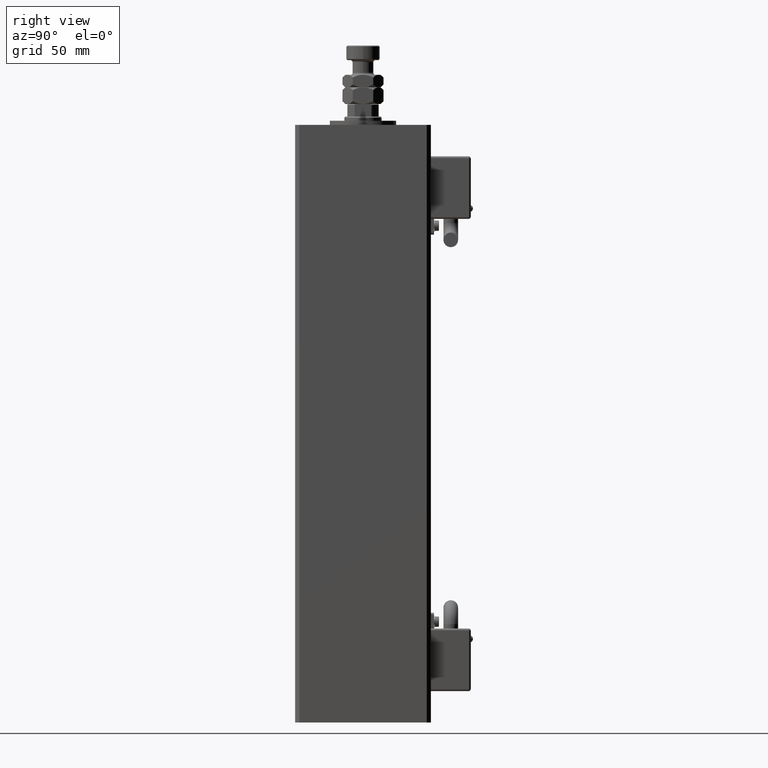
[diagram: clean part render]
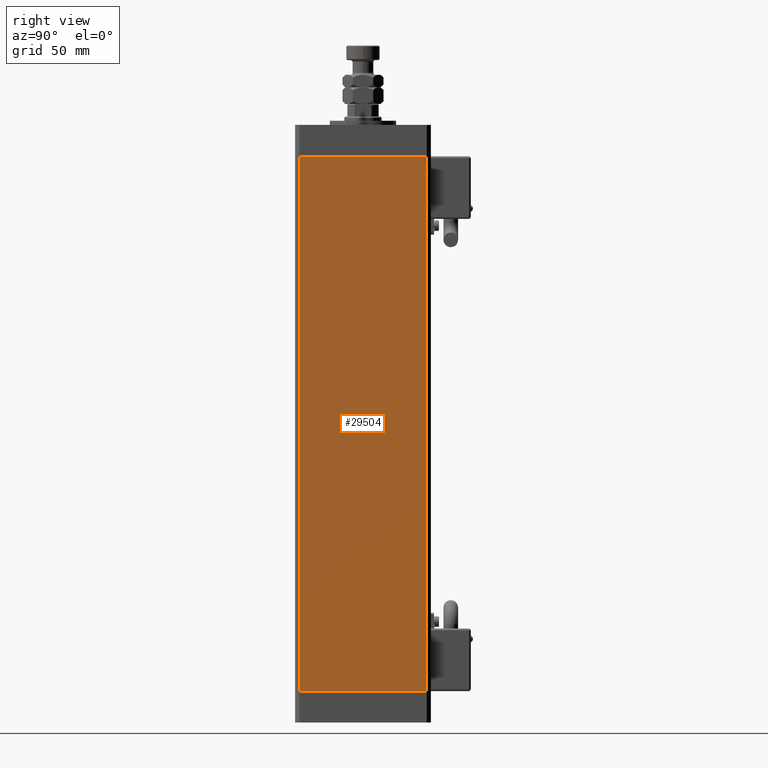
[diagram: same view with one face highlighted and labeled with its STEP entity id]
A machine part, right view. The second image highlights one B-rep face of the part: STEP entity #29504.
In plain terms, the highlighted planar face has unit normal (1, -0, 0).
Its self-contained STEP definition (entity closure, byte-faithful):
#4622 = DIRECTION ( 'NONE',  ( -2.275047181608927644E-16, -1.000000000000000000, 0.000000000000000000 ) ) ;
#9162 = ORIENTED_EDGE ( 'NONE', *, *, #10307, .F. ) ;
#9495 = DIRECTION ( 'NONE',  ( 2.275047181608927644E-16, 1.000000000000000000, 0.000000000000000000 ) ) ;
#9610 = VERTEX_POINT ( 'NONE', #40280 ) ;
#10307 = EDGE_CURVE ( 'NONE', #9610, #45968, #42899, .T. ) ;
#10341 = PLANE ( 'NONE',  #53509 ) ;
#10653 = DIRECTION ( 'NONE',  ( -0.000000000000000000, -0.000000000000000000, -1.000000000000000000 ) ) ;
#12408 = EDGE_LOOP ( 'NONE', ( #43359, #9162, #33898, #15560 ) ) ;
#13002 = DIRECTION ( 'NONE',  ( -0.000000000000000000, -0.000000000000000000, -1.000000000000000000 ) ) ;
#14643 = CARTESIAN_POINT ( 'NONE',  ( 37.50000000000000711, 30.50000000000000000, 256.0000000000000000 ) ) ;
#14777 = EDGE_CURVE ( 'NONE', #45968, #32109, #26881, .T. ) ;
#15560 = ORIENTED_EDGE ( 'NONE', *, *, #52453, .T. ) ;
#17022 = CARTESIAN_POINT ( 'NONE',  ( 37.50000000000000711, 30.50000000000000000, 256.0000000000000000 ) ) ;
#18239 = CARTESIAN_POINT ( 'NONE',  ( 37.49999999999999289, -30.50000000000000000, 256.0000000000000000 ) ) ;
#18379 = FACE_OUTER_BOUND ( 'NONE', #12408, .T. ) ;
#18394 = LINE ( 'NONE', #27312, #18419 ) ;
#18419 = VECTOR ( 'NONE', #4622, 1000.000000000000000 ) ;
#18892 = EDGE_CURVE ( 'NONE', #9610, #37572, #18394, .T. ) ;
#26881 = LINE ( 'NONE', #27727, #35698 ) ;
#27312 = CARTESIAN_POINT ( 'NONE',  ( 37.50000000000000711, 30.50000000000000000, 256.0000000000000000 ) ) ;
#27727 = CARTESIAN_POINT ( 'NONE',  ( 37.50000000000000711, 30.50000000000000000, 0.000000000000000000 ) ) ;
#28467 = LINE ( 'NONE', #36792, #34486 ) ;
#29504 = ADVANCED_FACE ( 'NONE', ( #18379 ), #10341, .T. ) ;
#32109 = VERTEX_POINT ( 'NONE', #40468 ) ;
#32172 = DIRECTION ( 'NONE',  ( 1.000000000000000000, -2.275047181608927644E-16, 0.000000000000000000 ) ) ;
#33700 = VECTOR ( 'NONE', #13002, 1000.000000000000000 ) ;
#33898 = ORIENTED_EDGE ( 'NONE', *, *, #18892, .T. ) ;
#34486 = VECTOR ( 'NONE', #10653, 1000.000000000000000 ) ;
#35698 = VECTOR ( 'NONE', #44410, 1000.000000000000000 ) ;
#36792 = CARTESIAN_POINT ( 'NONE',  ( 37.49999999999999289, -30.50000000000000000, 256.0000000000000000 ) ) ;
#37572 = VERTEX_POINT ( 'NONE', #18239 ) ;
#40280 = CARTESIAN_POINT ( 'NONE',  ( 37.50000000000000711, 30.50000000000000000, 256.0000000000000000 ) ) ;
#40468 = CARTESIAN_POINT ( 'NONE',  ( 37.49999999999999289, -30.50000000000000000, 0.000000000000000000 ) ) ;
#42899 = LINE ( 'NONE', #17022, #33700 ) ;
#43359 = ORIENTED_EDGE ( 'NONE', *, *, #14777, .F. ) ;
#44410 = DIRECTION ( 'NONE',  ( -2.275047181608927644E-16, -1.000000000000000000, 0.000000000000000000 ) ) ;
#45968 = VERTEX_POINT ( 'NONE', #53636 ) ;
#52453 = EDGE_CURVE ( 'NONE', #37572, #32109, #28467, .T. ) ;
#53509 = AXIS2_PLACEMENT_3D ( 'NONE', #14643, #32172, #9495 ) ;
#53636 = CARTESIAN_POINT ( 'NONE',  ( 37.50000000000000711, 30.50000000000000000, 0.000000000000000000 ) ) ;